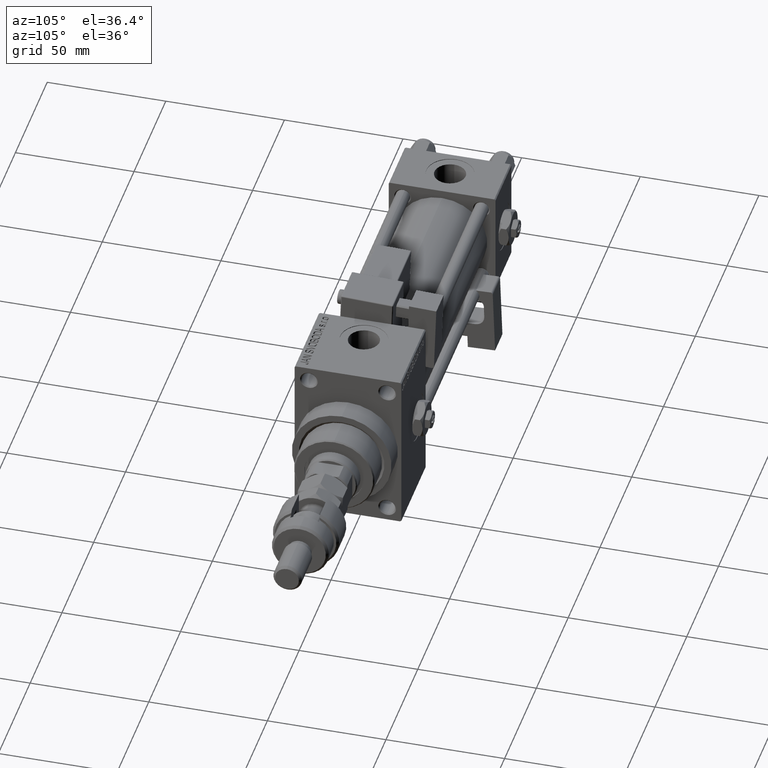
[diagram: clean part render]
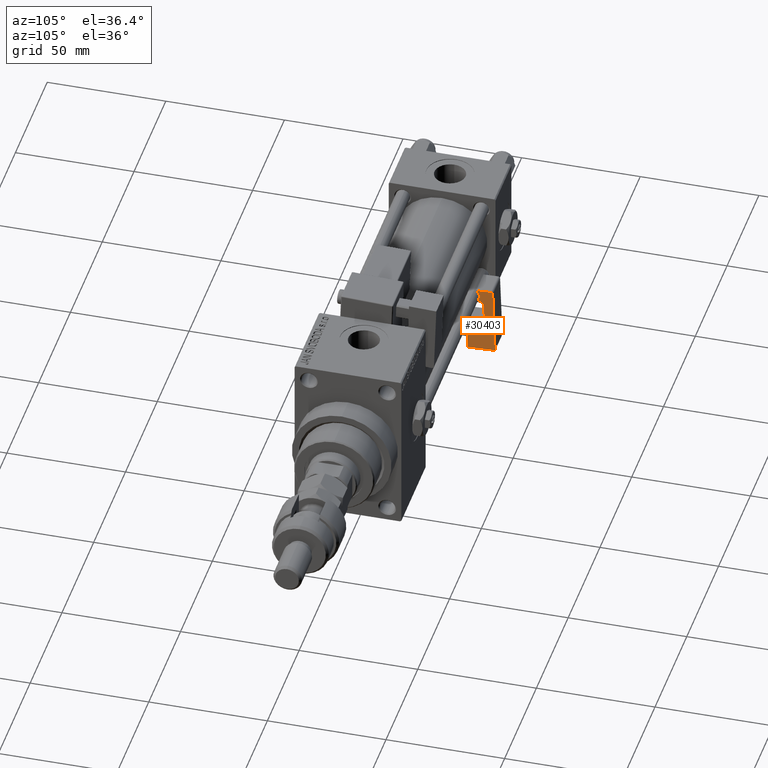
[diagram: same view with one face highlighted and labeled with its STEP entity id]
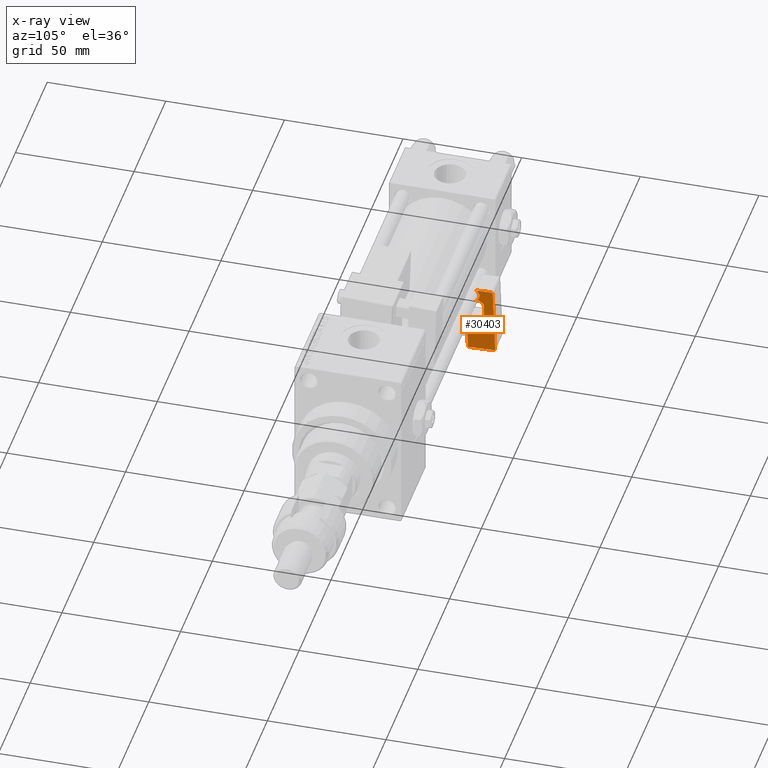
[diagram: x-ray of the same camera — body ghosted, the highlighted face saturated]
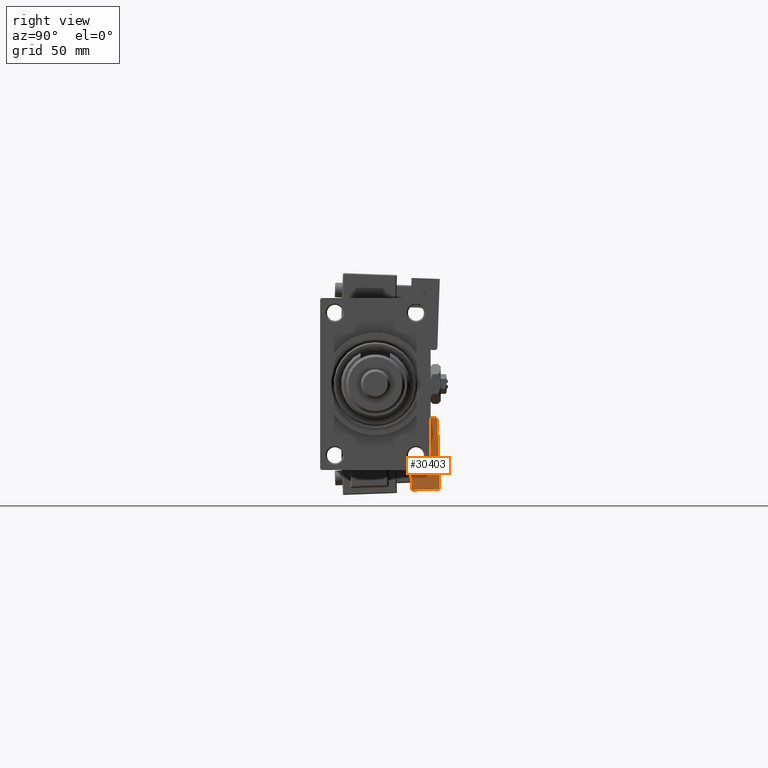
[diagram: same view with one face highlighted and labeled with its STEP entity id]
A machine part, auxiliary view. The second image highlights one B-rep face of the part: STEP entity #30403.
The next image is the same camera in x-ray: the body ghosted, the highlighted face saturated — about 0% of this face is hidden behind the body in this view.
A second angle (right view) of the same face is appended — the face is thin or edge-on in the first view.
In plain terms, the highlighted planar face has unit normal (-1, 0, 0).
Its self-contained STEP definition (entity closure, byte-faithful):
#195 = VERTEX_POINT ( 'NONE', #921 ) ;
#761 = CIRCLE ( 'NONE', #48990, 1.000000000000000888 ) ;
#921 = CARTESIAN_POINT ( 'NONE',  ( 5.750000000000000000, 4.750000000000002665, 29.00000000000000000 ) ) ;
#1066 = VERTEX_POINT ( 'NONE', #4846 ) ;
#1254 = VERTEX_POINT ( 'NONE', #29225 ) ;
#1564 = CARTESIAN_POINT ( 'NONE',  ( 5.750000000000000000, 5.750000000000000000, 29.00000000000000000 ) ) ;
#2232 = CARTESIAN_POINT ( 'NONE',  ( 5.750000000000000000, -0.7500000000000007772, 21.50000000000000000 ) ) ;
#2702 = EDGE_CURVE ( 'NONE', #5436, #1254, #43695, .T. ) ;
#2928 = DIRECTION ( 'NONE',  ( 0.000000000000000000, 0.000000000000000000, 1.000000000000000000 ) ) ;
#3145 = CARTESIAN_POINT ( 'NONE',  ( 5.750000000000000000, 5.750000000000001776, 12.00000000000000000 ) ) ;
#3931 = PLANE ( 'NONE',  #22479 ) ;
#4481 = CARTESIAN_POINT ( 'NONE',  ( 5.750000000000000000, -1.015596606550550618, 28.80466383879212700 ) ) ;
#4846 = CARTESIAN_POINT ( 'NONE',  ( 5.750000000000000000, -2.250000000000001776, 12.00000000000000000 ) ) ;
#5223 = VECTOR ( 'NONE', #28241, 1000.000000000000114 ) ;
#5436 = VERTEX_POINT ( 'NONE', #29101 ) ;
#5891 = LINE ( 'NONE', #22649, #44956 ) ;
#6809 = CIRCLE ( 'NONE', #30452, 2.499999999999998668 ) ;
#7022 = EDGE_CURVE ( 'NONE', #54272, #195, #761, .T. ) ;
#7120 = CARTESIAN_POINT ( 'NONE',  ( 5.750000000000000000, -1.249999999999999334, 29.00000000000000000 ) ) ;
#7541 = DIRECTION ( 'NONE',  ( 0.000000000000000000, 1.000000000000000000, 0.000000000000000000 ) ) ;
#7682 = EDGE_LOOP ( 'NONE', ( #16129, #49296, #26560, #26363, #34501, #27134, #30307, #29674, #41120, #44708, #22278, #29417, #40330 ) ) ;
#9657 = DIRECTION ( 'NONE',  ( -1.000000000000000000, 0.000000000000000000, 0.000000000000000000 ) ) ;
#10038 = VECTOR ( 'NONE', #51240, 1000.000000000000000 ) ;
#10766 = CARTESIAN_POINT ( 'NONE',  ( 5.750000000000000000, 5.750000000000001776, 12.00000000000000000 ) ) ;
#11895 = DIRECTION ( 'NONE',  ( -1.000000000000000000, 0.000000000000000000, 0.000000000000000000 ) ) ;
#11975 = DIRECTION ( 'NONE',  ( -1.000000000000000000, 0.000000000000000000, 0.000000000000000000 ) ) ;
#13010 = VECTOR ( 'NONE', #14626, 1000.000000000000000 ) ;
#14212 = DIRECTION ( 'NONE',  ( -1.000000000000000000, 0.000000000000000000, 0.000000000000000000 ) ) ;
#14329 = CARTESIAN_POINT ( 'NONE',  ( 5.750000000000000000, 1.750000000000000000, 24.00000000000000000 ) ) ;
#14626 = DIRECTION ( 'NONE',  ( -0.000000000000000000, 1.000000000000000000, -0.000000000000000000 ) ) ;
#15517 = LINE ( 'NONE', #24845, #22958 ) ;
#16129 = ORIENTED_EDGE ( 'NONE', *, *, #21014, .F. ) ;
#16298 = VERTEX_POINT ( 'NONE', #4481 ) ;
#17133 = DIRECTION ( 'NONE',  ( -0.000000000000000000, -0.000000000000000000, -1.000000000000000000 ) ) ;
#17987 = DIRECTION ( 'NONE',  ( 0.000000000000000000, -0.7682212795973755171, -0.6401843996644802637 ) ) ;
#18380 = EDGE_CURVE ( 'NONE', #33881, #18783, #15517, .T. ) ;
#18783 = VERTEX_POINT ( 'NONE', #27273 ) ;
#18994 = DIRECTION ( 'NONE',  ( 0.000000000000000000, 0.000000000000000000, 1.000000000000000000 ) ) ;
#19296 = LINE ( 'NONE', #10766, #13010 ) ;
#19830 = EDGE_CURVE ( 'NONE', #38288, #33881, #5891, .T. ) ;
#20520 = CARTESIAN_POINT ( 'NONE',  ( 5.750000000000000000, -1.249999999999999334, 29.00000000000000000 ) ) ;
#20691 = CARTESIAN_POINT ( 'NONE',  ( 5.750000000000000000, 5.750000000000001776, 12.00000000000000000 ) ) ;
#21014 = EDGE_CURVE ( 'NONE', #54272, #40658, #28116, .T. ) ;
#21148 = DIRECTION ( 'NONE',  ( 0.000000000000000000, -2.602085213965208275E-15, 1.000000000000000000 ) ) ;
#22278 = ORIENTED_EDGE ( 'NONE', *, *, #33876, .F. ) ;
#22479 = AXIS2_PLACEMENT_3D ( 'NONE', #20691, #11895, #54144 ) ;
#22573 = DIRECTION ( 'NONE',  ( -0.000000000000000000, 1.000000000000000000, -0.000000000000000000 ) ) ;
#22649 = CARTESIAN_POINT ( 'NONE',  ( 5.750000000000000000, 1.749999999999999778, 26.50000000000000355 ) ) ;
#22958 = VECTOR ( 'NONE', #7541, 1000.000000000000000 ) ;
#23043 = VERTEX_POINT ( 'NONE', #42273 ) ;
#23390 = EDGE_CURVE ( 'NONE', #195, #40587, #43831, .T. ) ;
#24612 = EDGE_CURVE ( 'NONE', #16298, #38288, #46046, .T. ) ;
#24845 = CARTESIAN_POINT ( 'NONE',  ( 5.750000000000000000, -1.249999999999999334, 24.00000000000000000 ) ) ;
#26363 = ORIENTED_EDGE ( 'NONE', *, *, #36297, .T. ) ;
#26506 = VERTEX_POINT ( 'NONE', #35399 ) ;
#26560 = ORIENTED_EDGE ( 'NONE', *, *, #23390, .T. ) ;
#27134 = ORIENTED_EDGE ( 'NONE', *, *, #19830, .T. ) ;
#27273 = CARTESIAN_POINT ( 'NONE',  ( 5.750000000000000000, -0.7500000000000007772, 24.00000000000000000 ) ) ;
#28116 = LINE ( 'NONE', #3145, #34469 ) ;
#28241 = DIRECTION ( 'NONE',  ( 0.000000000000000000, 0.7682212795973759611, -0.6401843996644797086 ) ) ;
#29101 = CARTESIAN_POINT ( 'NONE',  ( 5.750000000000000000, 1.749999999999999112, 21.50000000000000000 ) ) ;
#29225 = CARTESIAN_POINT ( 'NONE',  ( 5.750000000000000000, 1.749999999999997558, 16.00000000000000000 ) ) ;
#29262 = CARTESIAN_POINT ( 'NONE',  ( 5.750000000000000000, 5.750000000000001776, 0.000000000000000000 ) ) ;
#29417 = ORIENTED_EDGE ( 'NONE', *, *, #43557, .T. ) ;
#29674 = ORIENTED_EDGE ( 'NONE', *, *, #32685, .T. ) ;
#30307 = ORIENTED_EDGE ( 'NONE', *, *, #18380, .T. ) ;
#30403 = ADVANCED_FACE ( 'NONE', ( #48684 ), #3931, .F. ) ;
#30452 = AXIS2_PLACEMENT_3D ( 'NONE', #2232, #9657, #18994 ) ;
#31106 = AXIS2_PLACEMENT_3D ( 'NONE', #32552, #11975, #2928 ) ;
#32552 = CARTESIAN_POINT ( 'NONE',  ( 5.750000000000000000, -2.936149805543990521, 26.50000000000000000 ) ) ;
#32680 = EDGE_CURVE ( 'NONE', #23043, #40658, #39826, .T. ) ;
#32685 = EDGE_CURVE ( 'NONE', #18783, #5436, #6809, .T. ) ;
#33876 = EDGE_CURVE ( 'NONE', #26506, #1066, #19296, .T. ) ;
#33881 = VERTEX_POINT ( 'NONE', #43720 ) ;
#34469 = VECTOR ( 'NONE', #17133, 1000.000000000000000 ) ;
#34501 = ORIENTED_EDGE ( 'NONE', *, *, #24612, .T. ) ;
#35399 = CARTESIAN_POINT ( 'NONE',  ( 5.750000000000000000, -5.750000000000000000, 12.00000000000000000 ) ) ;
#35421 = DIRECTION ( 'NONE',  ( -0.000000000000000000, -0.000000000000000000, -1.000000000000000000 ) ) ;
#36260 = AXIS2_PLACEMENT_3D ( 'NONE', #52343, #14212, #39172 ) ;
#36297 = EDGE_CURVE ( 'NONE', #40587, #16298, #45013, .T. ) ;
#37393 = VECTOR ( 'NONE', #51645, 1000.000000000000000 ) ;
#38288 = VERTEX_POINT ( 'NONE', #53834 ) ;
#38415 = DIRECTION ( 'NONE',  ( 1.000000000000000000, -0.000000000000000000, -0.000000000000000000 ) ) ;
#39172 = DIRECTION ( 'NONE',  ( 0.000000000000000000, 0.000000000000000000, 1.000000000000000000 ) ) ;
#39826 = LINE ( 'NONE', #43153, #41879 ) ;
#40330 = ORIENTED_EDGE ( 'NONE', *, *, #32680, .T. ) ;
#40587 = VERTEX_POINT ( 'NONE', #20520 ) ;
#40658 = VERTEX_POINT ( 'NONE', #29262 ) ;
#41120 = ORIENTED_EDGE ( 'NONE', *, *, #2702, .T. ) ;
#41525 = CIRCLE ( 'NONE', #36260, 4.000000000000000000 ) ;
#41879 = VECTOR ( 'NONE', #22573, 1000.000000000000000 ) ;
#42273 = CARTESIAN_POINT ( 'NONE',  ( 5.750000000000000000, -5.750000000000000000, 0.000000000000000000 ) ) ;
#43140 = CARTESIAN_POINT ( 'NONE',  ( 5.750000000000000000, -5.750000000000000000, 12.00000000000000000 ) ) ;
#43153 = CARTESIAN_POINT ( 'NONE',  ( 5.750000000000000000, 5.750000000000001776, 0.000000000000000000 ) ) ;
#43340 = CARTESIAN_POINT ( 'NONE',  ( 5.750000000000000000, 4.750000000000001776, 28.00000000000000000 ) ) ;
#43557 = EDGE_CURVE ( 'NONE', #26506, #23043, #51628, .T. ) ;
#43695 = LINE ( 'NONE', #14329, #37393 ) ;
#43720 = CARTESIAN_POINT ( 'NONE',  ( 5.750000000000000000, -1.249999999999999334, 24.00000000000000000 ) ) ;
#43831 = LINE ( 'NONE', #1564, #10038 ) ;
#44708 = ORIENTED_EDGE ( 'NONE', *, *, #48625, .T. ) ;
#44956 = VECTOR ( 'NONE', #17987, 1000.000000000000114 ) ;
#45013 = LINE ( 'NONE', #7120, #5223 ) ;
#46046 = CIRCLE ( 'NONE', #31106, 2.999999999999999112 ) ;
#48625 = EDGE_CURVE ( 'NONE', #1254, #1066, #41525, .T. ) ;
#48684 = FACE_OUTER_BOUND ( 'NONE', #7682, .T. ) ;
#48990 = AXIS2_PLACEMENT_3D ( 'NONE', #43340, #38415, #21148 ) ;
#49296 = ORIENTED_EDGE ( 'NONE', *, *, #7022, .T. ) ;
#51240 = DIRECTION ( 'NONE',  ( 0.000000000000000000, -1.000000000000000000, 0.000000000000000000 ) ) ;
#51280 = CARTESIAN_POINT ( 'NONE',  ( 5.750000000000000000, 5.750000000000001776, 28.00000000000000000 ) ) ;
#51628 = LINE ( 'NONE', #43140, #53571 ) ;
#51645 = DIRECTION ( 'NONE',  ( 0.000000000000000000, -3.071906155375595568E-16, -1.000000000000000000 ) ) ;
#52343 = CARTESIAN_POINT ( 'NONE',  ( 5.750000000000000000, -2.250000000000002665, 16.00000000000000000 ) ) ;
#53571 = VECTOR ( 'NONE', #35421, 1000.000000000000000 ) ;
#53834 = CARTESIAN_POINT ( 'NONE',  ( 5.750000000000000000, -1.015596606550550396, 24.19533616120787300 ) ) ;
#54144 = DIRECTION ( 'NONE',  ( 0.000000000000000000, 0.000000000000000000, 1.000000000000000000 ) ) ;
#54272 = VERTEX_POINT ( 'NONE', #51280 ) ;